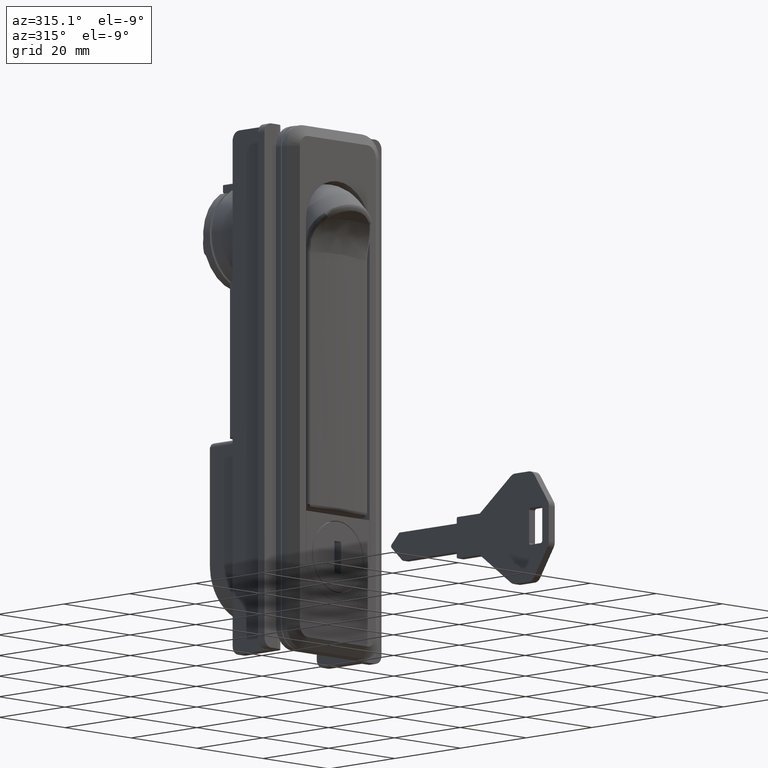
[diagram: clean part render]
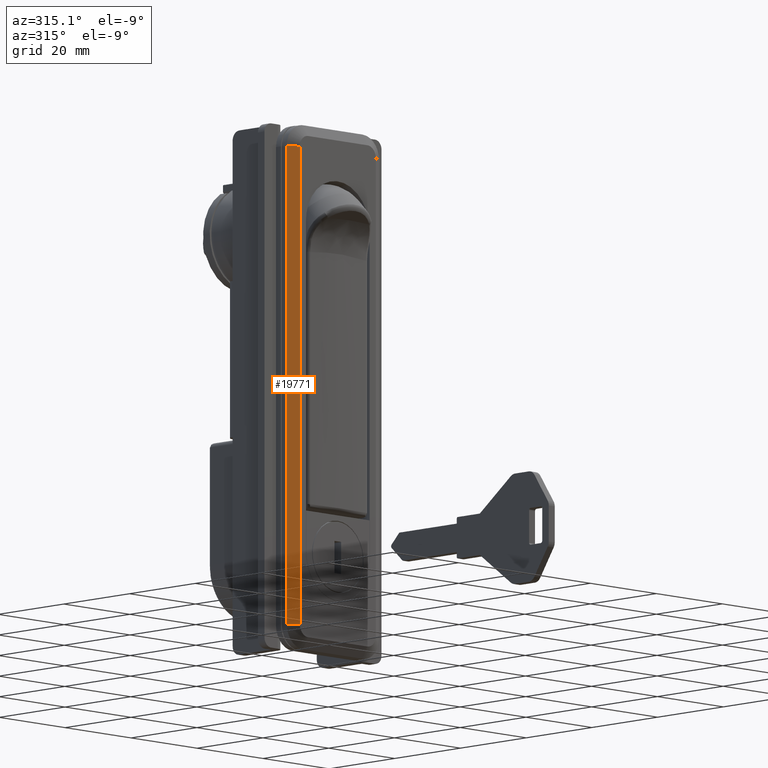
[diagram: same view with one face highlighted and labeled with its STEP entity id]
A machine part, auxiliary view. The second image highlights one B-rep face of the part: STEP entity #19771.
In plain terms, the highlighted face is a freeform B-spline surface patch.
Its self-contained STEP definition (entity closure, byte-faithful):
#19652=CARTESIAN_POINT('',(-1.499999999999946,14.0,16.0));
#19653=VERTEX_POINT('',#19652);
#19654=CARTESIAN_POINT('',(-2.999999999999915,11.500000000000000,16.0));
#19655=VERTEX_POINT('',#19654);
#19656=CARTESIAN_POINT('',(-1.499999999999946,14.0,16.0));
#19657=CARTESIAN_POINT('',(-2.999999999999915,11.500000000000000,16.0));
#19658=QUASI_UNIFORM_CURVE('',1,(#19656,#19657),.UNSPECIFIED.,.F.,.U.);
#19659=EDGE_CURVE('',#19653,#19655,#19658,.T.);
#19744=CARTESIAN_POINT('',(-3.074924997092623,11.375125004845479,-93.194799798427823));
#19745=CARTESIAN_POINT('',(-1.425074962674101,14.124875062209741,-93.194799798427823));
#19746=CARTESIAN_POINT('',(-3.074924997092636,11.375125004845490,21.194802587925199));
#19747=CARTESIAN_POINT('',(-1.425074962674116,14.124875062209750,21.194802587925199));
#19748=B_SPLINE_SURFACE_WITH_KNOTS('',1,1,((#19744,#19746),(#19745,#19747)),.UNSPECIFIED.,.F.,.F.,.U.,(2,2),(2,2),(0.0,3.206732061467801),(0.0,114.389602386353000),.UNSPECIFIED.);
#19749=CARTESIAN_POINT('',(-1.499999999999946,14.0,-88.0));
#19750=VERTEX_POINT('',#19749);
#19751=CARTESIAN_POINT('',(-2.999999999999915,11.500000000000000,-88.0));
#19752=VERTEX_POINT('',#19751);
#19753=CARTESIAN_POINT('',(-1.499999999999946,14.0,-88.0));
#19754=CARTESIAN_POINT('',(-2.999999999999915,11.500000000000000,-88.0));
#19755=QUASI_UNIFORM_CURVE('',1,(#19753,#19754),.UNSPECIFIED.,.F.,.U.);
#19756=EDGE_CURVE('',#19750,#19752,#19755,.T.);
#19757=ORIENTED_EDGE('',*,*,#19756,.T.);
#19758=CARTESIAN_POINT('',(-2.999999999999915,11.500000000000000,16.0));
#19759=CARTESIAN_POINT('',(-2.999999999999915,11.500000000000000,-88.0));
#19760=QUASI_UNIFORM_CURVE('',1,(#19758,#19759),.UNSPECIFIED.,.F.,.U.);
#19761=EDGE_CURVE('',#19655,#19752,#19760,.T.);
#19762=ORIENTED_EDGE('',*,*,#19761,.F.);
#19763=ORIENTED_EDGE('',*,*,#19659,.F.);
#19764=CARTESIAN_POINT('',(-1.499999999999946,14.0,-88.0));
#19765=CARTESIAN_POINT('',(-1.499999999999946,14.0,16.0));
#19766=QUASI_UNIFORM_CURVE('',1,(#19764,#19765),.UNSPECIFIED.,.F.,.U.);
#19767=EDGE_CURVE('',#19750,#19653,#19766,.T.);
#19768=ORIENTED_EDGE('',*,*,#19767,.F.);
#19769=EDGE_LOOP('',(#19757,#19762,#19763,#19768));
#19770=FACE_OUTER_BOUND('',#19769,.T.);
#19771=ADVANCED_FACE('',(#19770),#19748,.F.);